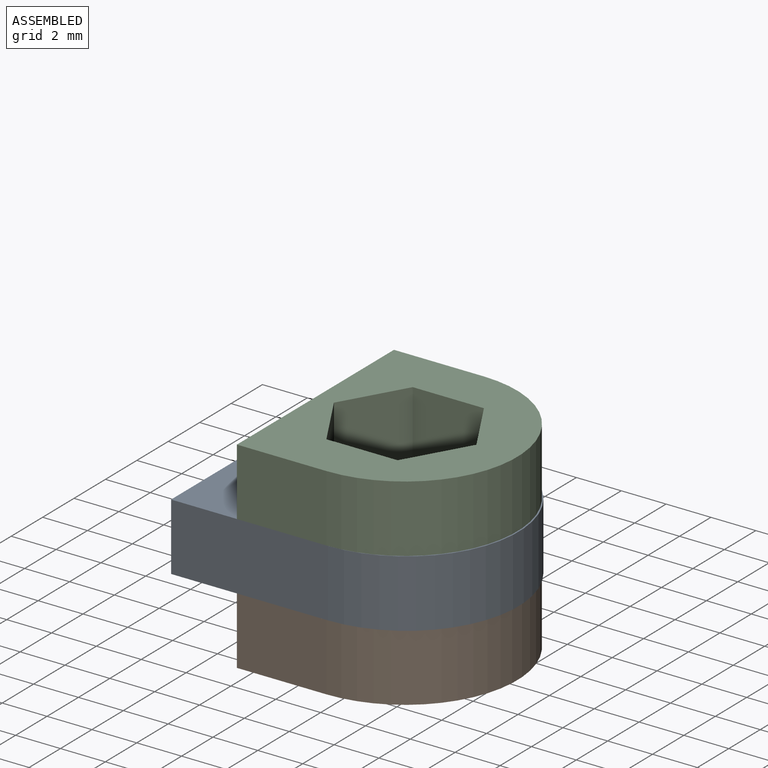
[diagram: assembled view]
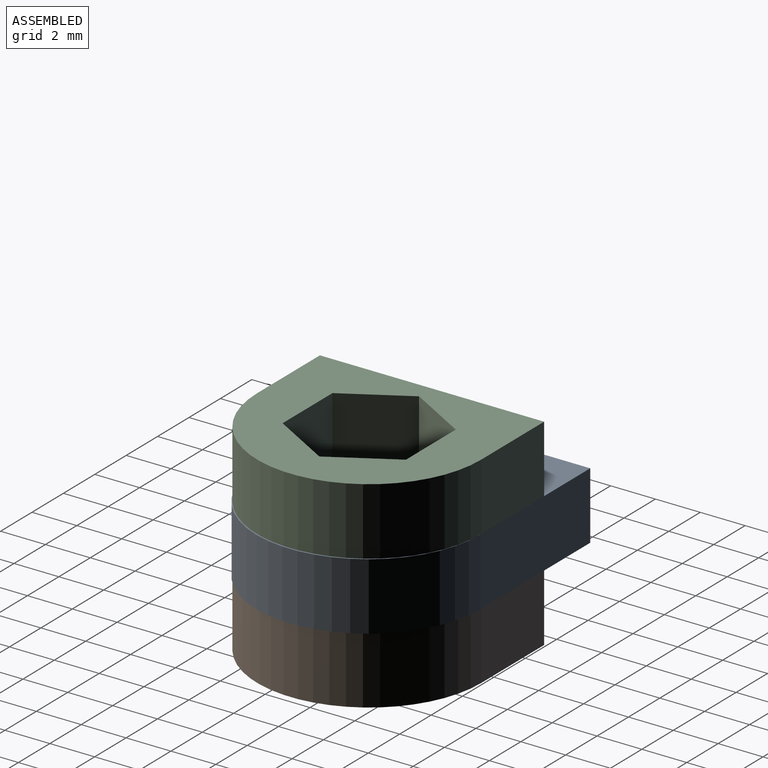
[diagram: assembled view, second angle]
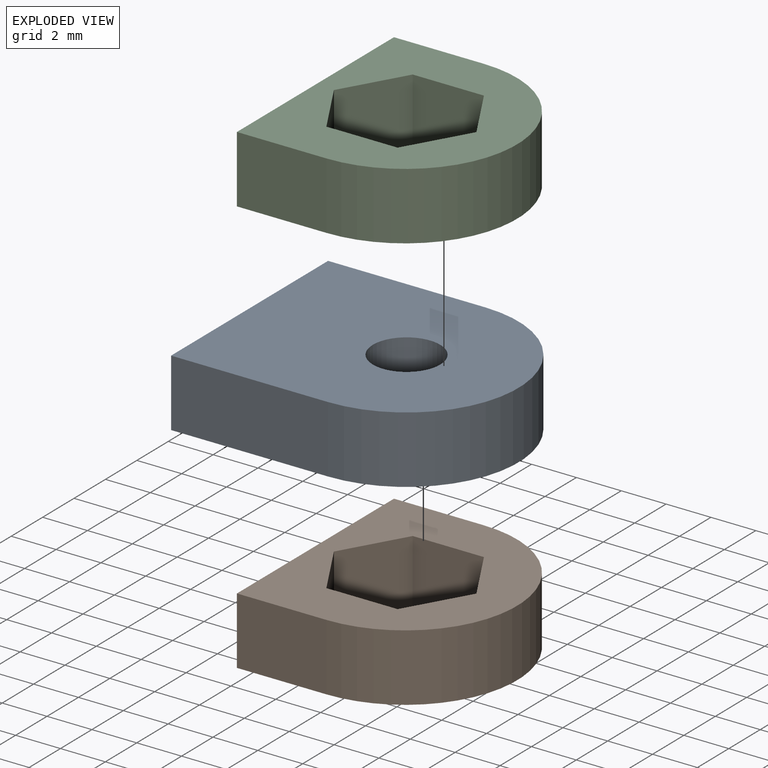
[diagram: exploded view]
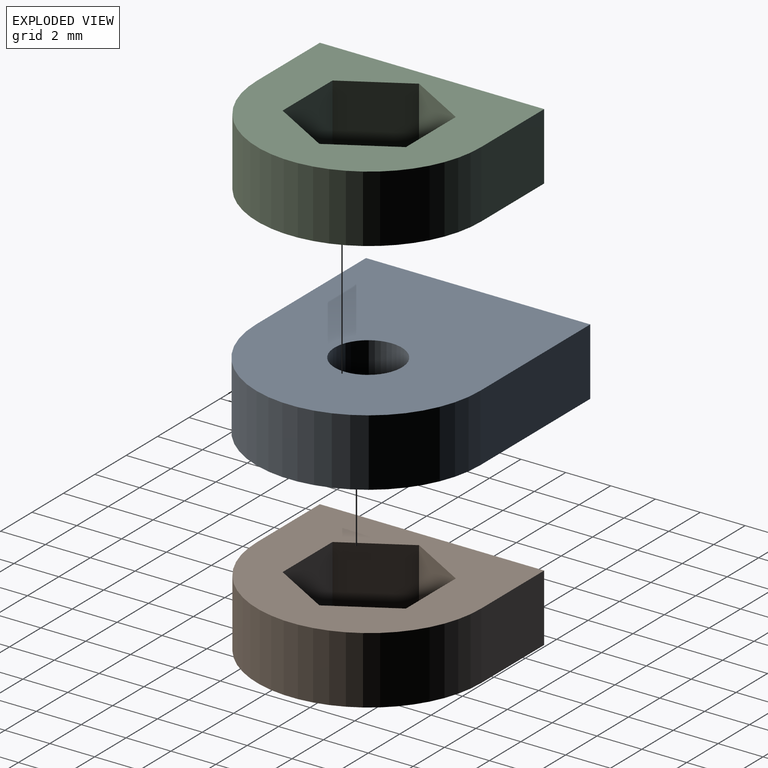
[diagram: exploded view, second angle]
ASSEMBLY  parts=3 mates=2
PART A: 7 faces, bbox 12x10x3 mm
  f0: plane 10x3mm, normal (-1,0,0), area 30mm2, adj f1,f3,f5,f6
  f1: plane 7x3mm, normal (0,-1,0), area 21mm2, adj f0,f2,f5,f6
  f2: cylinder r=5mm len=10mm, axis (0,0,-1), area 47.1mm2, adj f1,f3,f5,f6
  f3: plane 7x3mm, normal (0,1,0), area 21mm2, adj f0,f2,f5,f6
  f4: cylinder r=1.5mm len=3mm, axis (0,0,-1), area 28.3mm2, adj f5,f6
  f5: plane 12x10mm, normal (0,0,1), area 102.2mm2, adj f0,f1,f2,f3,f4
  f6: plane 12x10mm, normal (0,0,-1), area 102.2mm2, adj f0,f1,f2,f3,f4
PART B: 12 faces, bbox 9x10x3 mm
  f0: plane 10x3mm, normal (-1,0,0), area 30mm2, adj f1,f9,f10,f11
  f1: plane 4x3mm, normal (0,-1,0), area 12mm2, adj f0,f2,f10,f11
  f2: cylinder r=5mm len=10mm, axis (0,0,-1), area 47.1mm2, adj f1,f9,f10,f11
  f3: plane 3.18x3mm, normal (0,-1,0), area 9.5mm2, adj f4,f8,f10,f11
  f4: plane 3x2.75mm, normal (-0.87,-0.5,0), area 9.5mm2, adj f3,f5,f10,f11
  f5: plane 3x2.75mm, normal (-0.87,0.5,0), area 9.5mm2, adj f4,f6,f10,f11
  f6: plane 3.18x3mm, normal (0,1,0), area 9.5mm2, adj f5,f7,f10,f11
  f7: plane 3x2.75mm, normal (0.87,0.5,0), area 9.5mm2, adj f6,f8,f10,f11
  f8: plane 3x2.75mm, normal (0.87,-0.5,0), area 9.5mm2, adj f3,f7,f10,f11
  f9: plane 4x3mm, normal (0,1,0), area 12mm2, adj f0,f2,f10,f11
  f10: plane 10x9mm, normal (0,0,1), area 53.1mm2, adj f0,f1,f2,f3,f4,f5,f6,f7
  f11: plane 10x9mm, normal (0,0,-1), area 53.1mm2, adj f0,f1,f2,f3,f4,f5,f6,f7
PART C: same geometry as B
PLACE A t=(0.79,2.35,-18.6)mm
PLACE B rot(axis=(1,0,0),180deg) t=(0.72,2.35,-15.6)mm
PLACE C t=(0.72,2.35,-12.6)mm
MATE fastened A.f2 <-> B.f11  axis (0,0,-1) through (0.79,2.35,-15.6)mm
MATE fastened A.f2 <-> C.f11  axis (0,0,1) through (0.79,2.35,-12.6)mm
